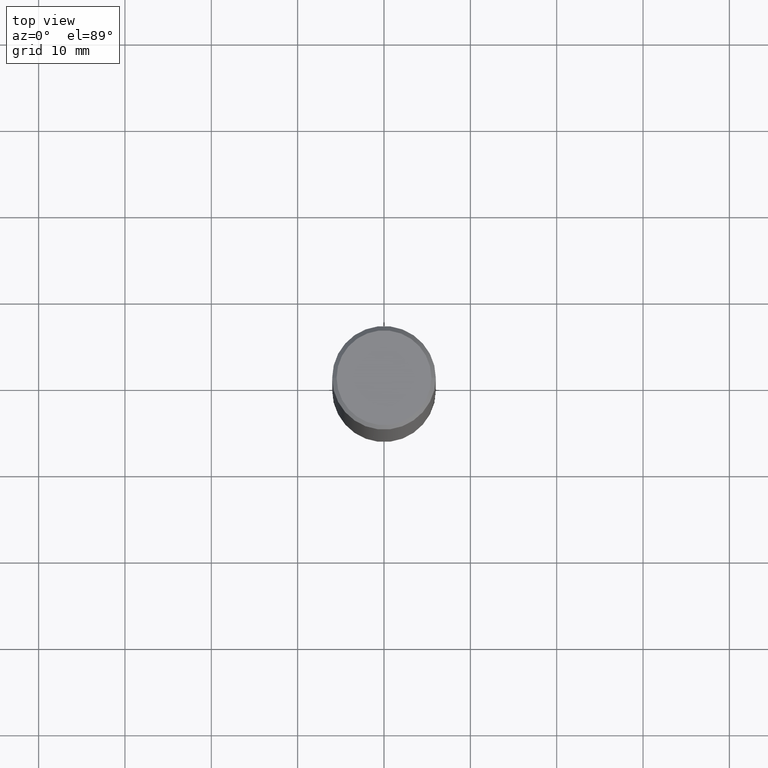
[diagram: clean part render]
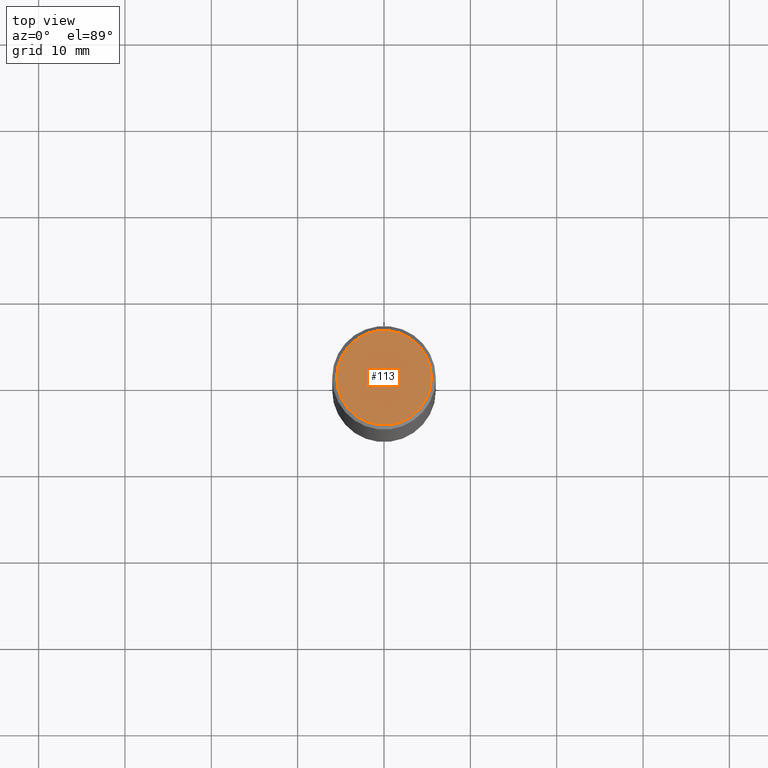
[diagram: same view with one face highlighted and labeled with its STEP entity id]
A machine part, top view. The second image highlights one B-rep face of the part: STEP entity #113.
In plain terms, the highlighted planar face has unit normal (0, -0, -1).
Its self-contained STEP definition (entity closure, byte-faithful):
#11 = EDGE_LOOP ( 'NONE', ( #19, #239 ) ) ;
#19 = ORIENTED_EDGE ( 'NONE', *, *, #50, .T. ) ;
#23 = DIRECTION ( 'NONE',  ( -2.445468806185136597E-29, 3.491481338843145583E-15, 1.000000000000000000 ) ) ;
#26 = DIRECTION ( 'NONE',  ( -1.000000000000000000, 6.982962677686265922E-15, -4.876176775795935793E-29 ) ) ;
#42 = CIRCLE ( 'NONE', #322, 0.2161999999999996980 ) ;
#48 = AXIS2_PLACEMENT_3D ( 'NONE', #229, #89, #169 ) ;
#50 = EDGE_CURVE ( 'NONE', #101, #210, #42, .T. ) ;
#81 = CARTESIAN_POINT ( 'NONE',  ( -1.043851414335219820E-46, 1.490343170380447200E-32, 4.268512490100411279E-18 ) ) ;
#83 = PLANE ( 'NONE',  #259 ) ;
#89 = DIRECTION ( 'NONE',  ( -2.445468806185136597E-29, 3.491481338843145583E-15, 1.000000000000000000 ) ) ;
#101 = VERTEX_POINT ( 'NONE', #288 ) ;
#107 = EDGE_CURVE ( 'NONE', #210, #101, #214, .T. ) ;
#113 = ADVANCED_FACE ( 'NONE', ( #172 ), #83, .F. ) ;
#169 = DIRECTION ( 'NONE',  ( 1.000000000000000000, -6.982962677686266711E-15, 4.876217060660162401E-29 ) ) ;
#172 = FACE_OUTER_BOUND ( 'NONE', #11, .T. ) ;
#210 = VERTEX_POINT ( 'NONE', #282 ) ;
#214 = CIRCLE ( 'NONE', #48, 0.2161999999999996980 ) ;
#219 = DIRECTION ( 'NONE',  ( 1.000000000000000000, -6.982962677686266711E-15, 4.876217060660162401E-29 ) ) ;
#229 = CARTESIAN_POINT ( 'NONE',  ( -1.043851414335219820E-46, 1.490343170380447200E-32, 4.268512490100411279E-18 ) ) ;
#239 = ORIENTED_EDGE ( 'NONE', *, *, #107, .T. ) ;
#259 = AXIS2_PLACEMENT_3D ( 'NONE', #310, #279, #26 ) ;
#279 = DIRECTION ( 'NONE',  ( 2.438088387897960049E-29, -3.491481338843145188E-15, -1.000000000000000000 ) ) ;
#282 = CARTESIAN_POINT ( 'NONE',  ( 0.2161999999999996980, -1.586759460484350016E-15, 4.268512490111238857E-18 ) ) ;
#288 = CARTESIAN_POINT ( 'NONE',  ( -0.2161999999999996980, 1.544631344304200000E-15, 4.268512490089730842E-18 ) ) ;
#310 = CARTESIAN_POINT ( 'NONE',  ( 1.509716530915768548E-15, 0.2161999999999996980, -7.527240092128368218E-16 ) ) ;
#322 = AXIS2_PLACEMENT_3D ( 'NONE', #81, #23, #219 ) ;